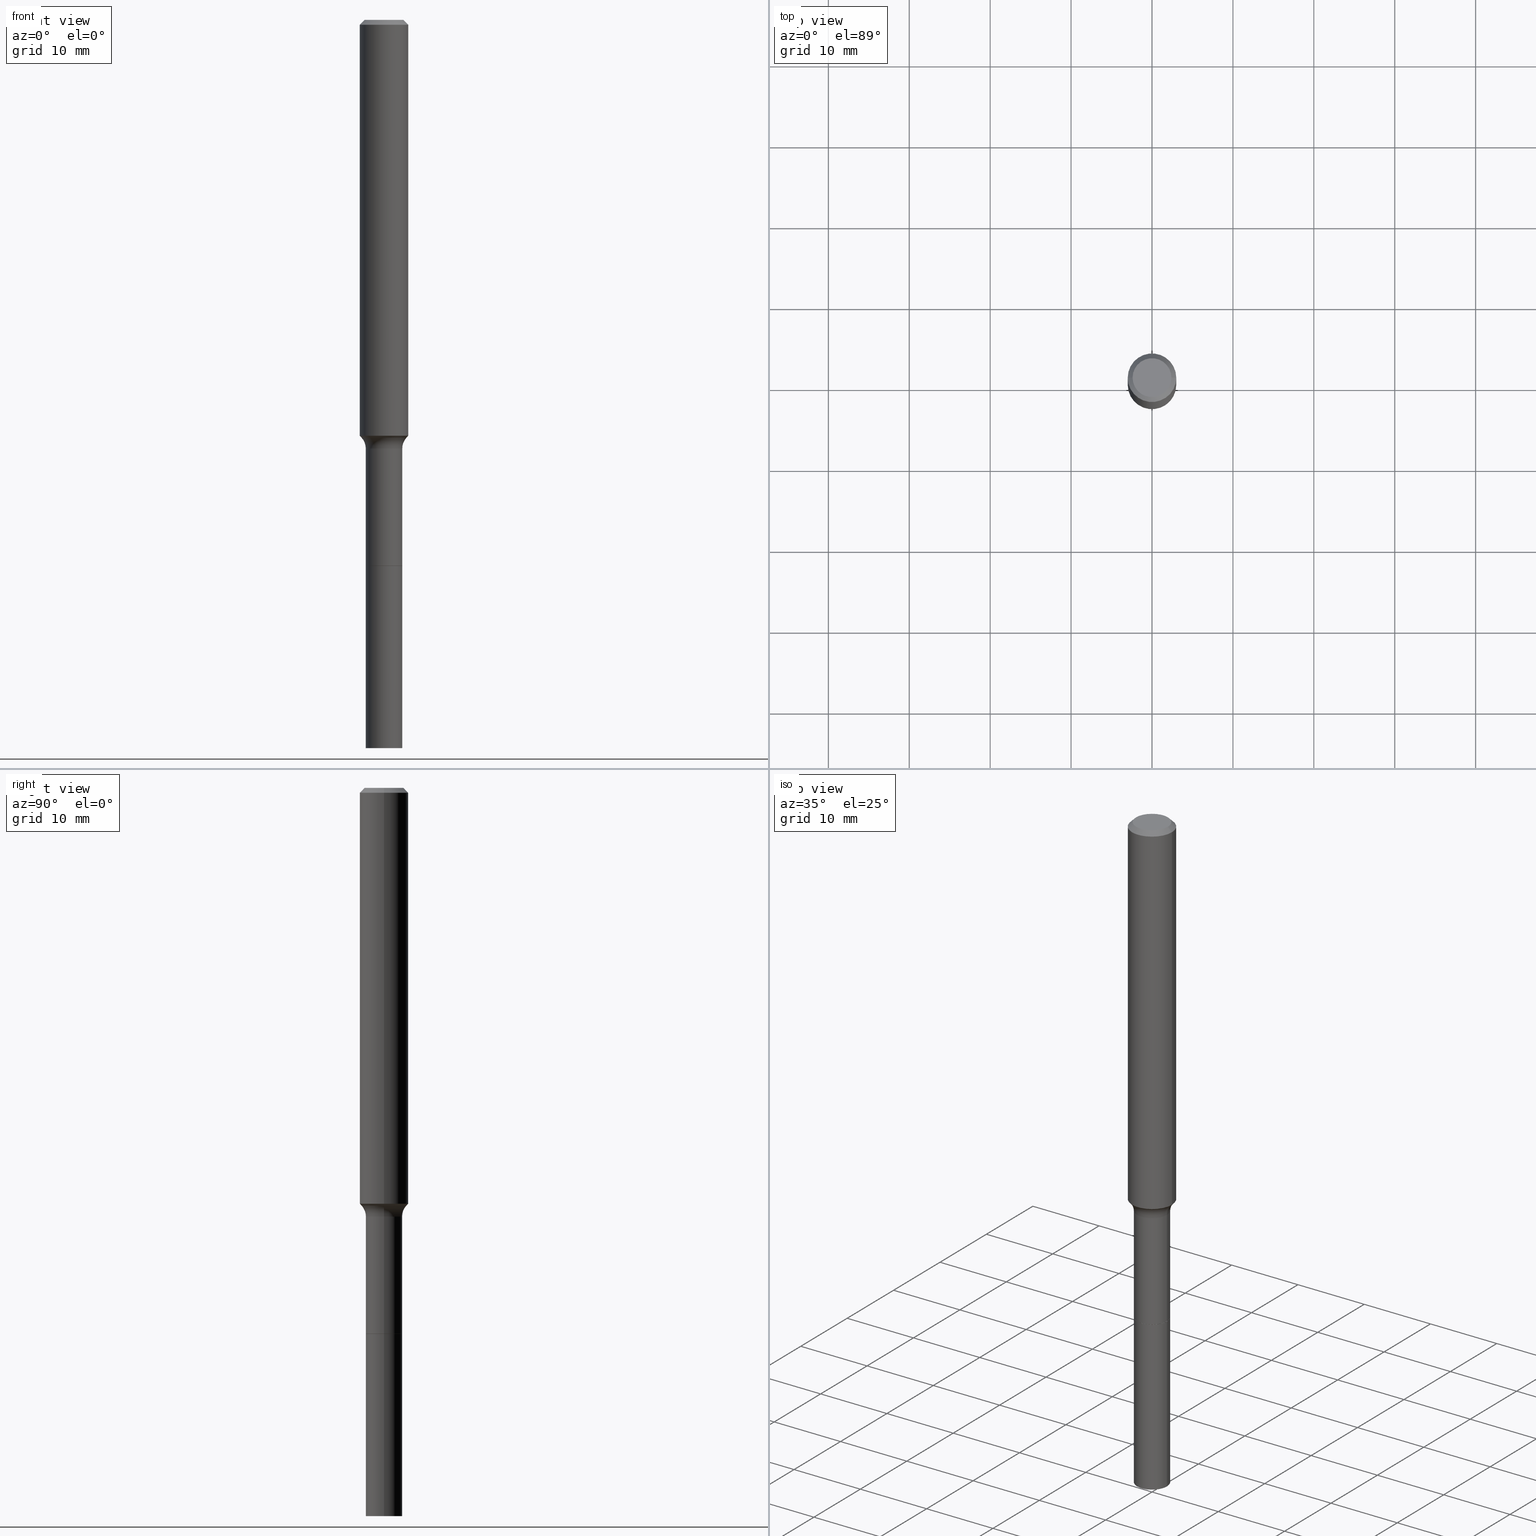
[diagram: canonical four-view strip — front | top / right | iso, engineering-drawing reading convention]
A machine part, canonical four-view strip (front | top / right | iso — engineering-drawing reading convention). The complete STEP part file that produces these views, byte-faithful:
ISO-10303-21;
HEADER;
FILE_DESCRIPTION (( 'STEP AP203' ),
    '1' );
FILE_NAME ('67831.STEP',
    '2025-04-01T15:31:22',
    ( '' ),
    ( '' ),
    'SwSTEP 2.0',
    'SolidWorks 2024',
    '' );
FILE_SCHEMA (( 'CONFIG_CONTROL_DESIGN' ));
ENDSEC;

DATA;
#1 = DIRECTION ( 'NONE',  ( 1.000000000000000000, -6.982962677686273810E-15, 0.000000000000000000 ) ) ;
#2 = EDGE_CURVE ( 'NONE', #162, #242, #122, .T. ) ;
#3 = AXIS2_PLACEMENT_3D ( 'NONE', #294, #255, #452 ) ;
#4 = CARTESIAN_POINT ( 'NONE',  ( 5.101981570344049922E-29, -7.284277517228453725E-15, -2.086299999999999599 ) ) ;
#5 = VERTEX_POINT ( 'NONE', #244 ) ;
#6 = PERSON_AND_ORGANIZATION ( #349, #413 ) ;
#7 = ORIENTED_EDGE ( 'NONE', *, *, #337, .T. ) ;
#8 = CARTESIAN_POINT ( 'NONE',  ( 0.08859999999999999820, -9.896603854950894217E-15, -2.657300000000000217 ) ) ;
#9 = PERSON_AND_ORGANIZATION ( #349, #413 ) ;
#10 = VECTOR ( 'NONE', #180, 39.37007874015748854 ) ;
#11 = LOCAL_TIME ( 11, 31, 22.00000000000000000, #375 ) ;
#12 = DIRECTION ( 'NONE',  ( -2.445468806185136597E-29, 3.491481338843145583E-15, 1.000000000000000000 ) ) ;
#13 = FACE_OUTER_BOUND ( 'NONE', #422, .T. ) ;
#14 = DIRECTION ( 'NONE',  ( 2.445468806185136597E-29, -3.491481338843145583E-15, -1.000000000000000000 ) ) ;
#15 = ADVANCED_FACE ( 'NONE', ( #441 ), #313, .T. ) ;
#16 = CALENDAR_DATE ( 2025, 1, 4 ) ;
#17 = CARTESIAN_POINT ( 'NONE',  ( -0.08859999999999995657, 6.295408638834484561E-16, -4.358176489965844866E-30 ) ) ;
#18 = DIRECTION ( 'NONE',  ( -2.445468806185136597E-29, 3.491481338843145583E-15, 1.000000000000000000 ) ) ;
#19 = ORIENTED_EDGE ( 'NONE', *, *, #333, .F. ) ;
#20 = EDGE_CURVE ( 'NONE', #196, #444, #311, .T. ) ;
#21 = DIRECTION ( 'NONE',  ( 1.000000000000000000, 0.000000000000000000, 0.000000000000000000 ) ) ;
#22 = ORIENTED_EDGE ( 'NONE', *, *, #214, .T. ) ;
#23 = FACE_OUTER_BOUND ( 'NONE', #98, .T. ) ;
#24 = CIRCLE ( 'NONE', #445, 0.08859999999999999820 ) ;
#25 = ORIENTED_EDGE ( 'NONE', *, *, #333, .T. ) ;
#26 = CARTESIAN_POINT ( 'NONE',  ( -0.08860000000000010922, -8.648372497824442414E-15, -2.657300000000000217 ) ) ;
#27 = ORIENTED_EDGE ( 'NONE', *, *, #410, .F. ) ;
#28 = LINE ( 'NONE', #394, #478 ) ;
#29 = ORIENTED_EDGE ( 'NONE', *, *, #231, .T. ) ;
#30 = APPROVAL ( #288, 'UNSPECIFIED' ) ;
#31 =( CONVERSION_BASED_UNIT ( 'INCH', #270 ) LENGTH_UNIT ( ) NAMED_UNIT ( #465 ) );
#32 = ORIENTED_EDGE ( 'NONE', *, *, #261, .T. ) ;
#33 = AXIS2_PLACEMENT_3D ( 'NONE', #81, #442, #198 ) ;
#34 = DESIGN_CONTEXT ( 'detailed design', #71, 'design' ) ;
#35 = ORIENTED_EDGE ( 'NONE', *, *, #470, .T. ) ;
#36 = ADVANCED_FACE ( 'NONE', ( #439 ), #272, .F. ) ;
#37 = FACE_OUTER_BOUND ( 'NONE', #363, .T. ) ;
#38 = CALENDAR_DATE ( 2025, 1, 4 ) ;
#39 = PRODUCT_DEFINITION_SHAPE ( 'NONE', 'NONE',  #103 ) ;
#40 = CARTESIAN_POINT ( 'NONE',  ( 0.000000000000000000, 0.000000000000000000, 0.000000000000000000 ) ) ;
#41 =( LENGTH_UNIT ( ) NAMED_UNIT ( * ) SI_UNIT ( $, .METRE. ) );
#42 = APPROVAL ( #167, 'UNSPECIFIED' ) ;
#43 = ORIENTED_EDGE ( 'NONE', *, *, #108, .T. ) ;
#44 = CONICAL_SURFACE ( 'NONE', #131, 0.08809999999999999776, 0.7853981633972775267 ) ;
#45 = PERSON_AND_ORGANIZATION ( #349, #413 ) ;
#46 = ORIENTED_EDGE ( 'NONE', *, *, #20, .T. ) ;
#47 = EDGE_CURVE ( 'NONE', #153, #367, #329, .T. ) ;
#48 = DIRECTION ( 'NONE',  ( 2.445468806185136597E-29, -3.491481338843145583E-15, -1.000000000000000000 ) ) ;
#49 = DIRECTION ( 'NONE',  ( -2.445468806185136597E-29, 3.491481338843145583E-15, 1.000000000000000000 ) ) ;
#50 = VECTOR ( 'NONE', #175, 39.37007874015748143 ) ;
#51 = UNCERTAINTY_MEASURE_WITH_UNIT (LENGTH_MEASURE( 1.000000000000000082E-05 ), #31, 'distance_accuracy_value', 'NONE');
#52 = CARTESIAN_POINT ( 'NONE',  ( 0.000000000000000000, 0.000000000000000000, 0.000000000000000000 ) ) ;
#53 = CARTESIAN_POINT ( 'NONE',  ( 5.776197320209331911E-31, -8.246878922347565456E-17, -0.02362000000000015823 ) ) ;
#54 = DIRECTION ( 'NONE',  ( -2.445468806185136597E-29, 3.491481338843145583E-15, 1.000000000000000000 ) ) ;
#55 = AXIS2_PLACEMENT_3D ( 'NONE', #405, #203, #118 ) ;
#56 = CIRCLE ( 'NONE', #488, 0.07999999999999993228 ) ;
#57 = ORIENTED_EDGE ( 'NONE', *, *, #187, .T. ) ;
#58 = MANIFOLD_SOLID_BREP ( 'Body-Move/Copy2[2]', #91 ) ;
#59 = ADVANCED_FACE ( 'NONE', ( #37 ), #44, .T. ) ;
#60 = DIRECTION ( 'NONE',  ( -2.445468806185136597E-29, 3.491481338843145583E-15, 1.000000000000000000 ) ) ;
#61 = EDGE_LOOP ( 'NONE', ( #199, #72 ) ) ;
#62 = LINE ( 'NONE', #382, #246 ) ;
#63 = VERTEX_POINT ( 'NONE', #164 ) ;
#64 = CARTESIAN_POINT ( 'NONE',  ( -0.1100917038704664480, -6.311534148919946347E-15, -2.031740131194999854 ) ) ;
#65 = VECTOR ( 'NONE', #115, 39.37007874015748143 ) ;
#66 = ORIENTED_EDGE ( 'NONE', *, *, #443, .F. ) ;
#67 = AXIS2_PLACEMENT_3D ( 'NONE', #165, #323, #161 ) ;
#68 = PERSON_AND_ORGANIZATION ( #349, #413 ) ;
#69 = CARTESIAN_POINT ( 'NONE',  ( 5.101981570344049922E-29, -7.284277517228453725E-15, -2.086299999999999599 ) ) ;
#70 = ORIENTED_EDGE ( 'NONE', *, *, #387, .T. ) ;
#71 = APPLICATION_CONTEXT ( 'configuration controlled 3d designs of mechanical parts and assemblies' ) ;
#72 = ORIENTED_EDGE ( 'NONE', *, *, #387, .F. ) ;
#73 = CARTESIAN_POINT ( 'NONE',  ( -0.08860000000000022025, -1.019509873093195295E-14, -3.543299999999999894 ) ) ;
#74 = ORIENTED_EDGE ( 'NONE', *, *, #178, .T. ) ;
#75 = TOROIDAL_SURFACE ( 'NONE', #477, 0.1685999999999999166, 0.07999999999999991840 ) ;
#76 = ADVANCED_FACE ( 'NONE', ( #479 ), #412, .T. ) ;
#77 = PRODUCT_DEFINITION_FORMATION_WITH_SPECIFIED_SOURCE ( 'ANY', '', #425, .NOT_KNOWN. ) ;
#78 = CARTESIAN_POINT ( 'NONE',  ( 0.08859999999999995657, -6.186904932430029529E-16, 4.320292623355197364E-30 ) ) ;
#79 = DIRECTION ( 'NONE',  ( -1.000000000000000000, 6.982962677686265922E-15, -4.876176775795935793E-29 ) ) ;
#80 = PERSON_AND_ORGANIZATION_ROLE ( 'classification_officer' ) ;
#81 = CARTESIAN_POINT ( 'NONE',  ( 5.101981570344049922E-29, -7.284277517228453725E-15, -2.086299999999999599 ) ) ;
#82 = ORIENTED_EDGE ( 'NONE', *, *, #326, .F. ) ;
#83 = COORDINATED_UNIVERSAL_TIME_OFFSET ( 5, 0, .BEHIND. ) ;
#84 = DIRECTION ( 'NONE',  ( -2.445468806185136877E-29, 3.491481338843145188E-15, 1.000000000000000000 ) ) ;
#85 = EDGE_CURVE ( 'NONE', #460, #458, #309, .T. ) ;
#86 = ORIENTED_EDGE ( 'NONE', *, *, #510, .T. ) ;
#87 = AXIS2_PLACEMENT_3D ( 'NONE', #340, #104, #185 ) ;
#88 = CIRCLE ( 'NONE', #33, 0.08859999999999992881 ) ;
#89 = FACE_OUTER_BOUND ( 'NONE', #357, .T. ) ;
#90 = DIRECTION ( 'NONE',  ( 1.000000000000000000, -6.982962677686260400E-15, 0.000000000000000000 ) ) ;
#91 = CLOSED_SHELL ( 'NONE', ( #241, #135, #127, #293, #222, #140, #193, #248, #76, #207, #151, #36, #487, #59 ) ) ;
#92 = CARTESIAN_POINT ( 'NONE',  ( -0.1181000000000002603, -6.224647477800412378E-15, -2.023152285005076045 ) ) ;
#93 = EDGE_CURVE ( 'NONE', #444, #102, #455, .T. ) ;
#94 = AXIS2_PLACEMENT_3D ( 'NONE', #485, #454, #373 ) ;
#95 = PLANE ( 'NONE',  #486 ) ;
#96 = CARTESIAN_POINT ( 'NONE',  ( 4.968557113111869591E-29, -7.093782753446066454E-15, -2.031740131194999854 ) ) ;
#97 = FACE_OUTER_BOUND ( 'NONE', #390, .T. ) ;
#98 = EDGE_LOOP ( 'NONE', ( #143, #46, #507, #265 ) ) ;
#99 = CYLINDRICAL_SURFACE ( 'NONE', #377, 0.1181000000000001354 ) ;
#100 = AXIS2_PLACEMENT_3D ( 'NONE', #234, #160, #392 ) ;
#101 =( GEOMETRIC_REPRESENTATION_CONTEXT ( 3 ) GLOBAL_UNCERTAINTY_ASSIGNED_CONTEXT ( ( #51 ) ) GLOBAL_UNIT_ASSIGNED_CONTEXT ( ( #31, #353, #158 ) ) REPRESENTATION_CONTEXT ( 'NONE', 'WORKASPACE' ) );
#102 = VERTEX_POINT ( 'NONE', #369 ) ;
#103 = PRODUCT_DEFINITION ( 'UNKNOWN', '', #77, #34 ) ;
#104 = DIRECTION ( 'NONE',  ( -2.445468806185136597E-29, 3.491481338843145583E-15, 1.000000000000000000 ) ) ;
#105 = VERTEX_POINT ( 'NONE', #136 ) ;
#106 = DIRECTION ( 'NONE',  ( 1.000000000000000000, -6.982962677686266711E-15, 4.876176775795936353E-29 ) ) ;
#107 = ORIENTED_EDGE ( 'NONE', *, *, #416, .T. ) ;
#108 = EDGE_CURVE ( 'NONE', #458, #188, #320, .T. ) ;
#109 = CARTESIAN_POINT ( 'NONE',  ( 8.665029620955794069E-29, -1.237136582792291707E-14, -3.543299999999999894 ) ) ;
#110 = CIRCLE ( 'NONE', #335, 0.09447999999999998066 ) ;
#111 = ORIENTED_EDGE ( 'NONE', *, *, #510, .F. ) ;
#112 = CIRCLE ( 'NONE', #277, 0.08859999999999992881 ) ;
#113 = PRODUCT_RELATED_PRODUCT_CATEGORY ( 'detail', '', ( #425 ) ) ;
#114 = CARTESIAN_POINT ( 'NONE',  ( 5.776197320209331911E-31, -8.246878922347565456E-17, -0.02362000000000015823 ) ) ;
#115 = DIRECTION ( 'NONE',  ( -0.7071067811864267805, 7.493145998869918709E-15, 0.7071067811866682540 ) ) ;
#116 = DATE_AND_TIME ( #16, #11 ) ;
#117 = DIRECTION ( 'NONE',  ( -2.445468806185136597E-29, 3.491481338843145583E-15, 1.000000000000000000 ) ) ;
#118 = DIRECTION ( 'NONE',  ( -1.000000000000000000, 6.982962677686265922E-15, -4.876176775795935793E-29 ) ) ;
#119 = EDGE_CURVE ( 'NONE', #511, #63, #110, .T. ) ;
#120 = CARTESIAN_POINT ( 'NONE',  ( -0.08859999999999999820, -7.650681705250012498E-15, -2.656800000000000050 ) ) ;
#121 = ORIENTED_EDGE ( 'NONE', *, *, #174, .F. ) ;
#122 = CIRCLE ( 'NONE', #100, 0.08859999999999999820 ) ;
#123 = CIRCLE ( 'NONE', #496, 0.1181000000000002603 ) ;
#124 = CARTESIAN_POINT ( 'NONE',  ( 8.665029620955794069E-29, -1.237136582792291707E-14, -3.543299999999999894 ) ) ;
#125 = DIRECTION ( 'NONE',  ( -2.445468806185136597E-29, 3.491481338843145583E-15, 1.000000000000000000 ) ) ;
#126 = APPROVAL_DATE_TIME ( #318, #484 ) ;
#127 = ADVANCED_FACE ( 'NONE', ( #491 ), #447, .T. ) ;
#128 = DIRECTION ( 'NONE',  ( -0.7071067811865461294, 2.468850131082242072E-15, -0.7071067811865489050 ) ) ;
#129 = VERTEX_POINT ( 'NONE', #334 ) ;
#130 = CALENDAR_DATE ( 2025, 1, 4 ) ;
#131 = AXIS2_PLACEMENT_3D ( 'NONE', #359, #125, #1 ) ;
#132 = APPROVAL_PERSON_ORGANIZATION ( #157, #484, #480 ) ;
#133 = DIRECTION ( 'NONE',  ( -2.445468806185136597E-29, 3.491481338843145583E-15, 1.000000000000000000 ) ) ;
#134 = DIRECTION ( 'NONE',  ( 1.000000000000000000, -6.982962677686269077E-15, 0.000000000000000000 ) ) ;
#135 = ADVANCED_FACE ( 'NONE', ( #374 ), #435, .T. ) ;
#136 = CARTESIAN_POINT ( 'NONE',  ( -0.08859999999999992881, -7.650681705250012498E-15, -2.086299999999999599 ) ) ;
#137 = CC_DESIGN_DATE_AND_TIME_ASSIGNMENT ( #243, #364, ( #372 ) ) ;
#138 = AXIS2_PLACEMENT_3D ( 'NONE', #432, #194, #79 ) ;
#139 = CARTESIAN_POINT ( 'NONE',  ( 6.498344258675763520E-29, -9.277913361707891265E-15, -2.657300000000000217 ) ) ;
#140 = ADVANCED_FACE ( 'NONE', ( #89 ), #415, .T. ) ;
#141 = FACE_OUTER_BOUND ( 'NONE', #324, .T. ) ;
#142 = DIRECTION ( 'NONE',  ( 1.000000000000000000, -6.982962677686273810E-15, 0.000000000000000000 ) ) ;
#143 = ORIENTED_EDGE ( 'NONE', *, *, #317, .T. ) ;
#144 = VECTOR ( 'NONE', #218, 39.37007874015748854 ) ;
#145 = DIRECTION ( 'NONE',  ( 1.000000000000000000, -6.982962677686269866E-15, 0.000000000000000000 ) ) ;
#146 = AXIS2_PLACEMENT_3D ( 'NONE', #139, #376, #90 ) ;
#147 = LOCAL_TIME ( 11, 31, 22.00000000000000000, #83 ) ;
#148 = ORIENTED_EDGE ( 'NONE', *, *, #2, .T. ) ;
#149 = CARTESIAN_POINT ( 'NONE',  ( 6.498344258675763520E-29, -9.277913361707891265E-15, -2.657300000000000217 ) ) ;
#150 = ORIENTED_EDGE ( 'NONE', *, *, #337, .F. ) ;
#151 = ADVANCED_FACE ( 'NONE', ( #407 ), #200, .T. ) ;
#152 = FACE_OUTER_BOUND ( 'NONE', #509, .T. ) ;
#153 = VERTEX_POINT ( 'NONE', #92 ) ;
#154 = CALENDAR_DATE ( 2025, 1, 4 ) ;
#155 = LINE ( 'NONE', #481, #469 ) ;
#156 = EDGE_LOOP ( 'NONE', ( #150, #166, #86, #230 ) ) ;
#157 = PERSON_AND_ORGANIZATION ( #349, #413 ) ;
#158 =( NAMED_UNIT ( * ) SI_UNIT ( $, .STERADIAN. ) SOLID_ANGLE_UNIT ( ) );
#159 = ADVANCED_FACE ( 'NONE', ( #449 ), #95, .F. ) ;
#160 = DIRECTION ( 'NONE',  ( -2.445468806185136597E-29, 3.491481338843145583E-15, 1.000000000000000000 ) ) ;
#161 = DIRECTION ( 'NONE',  ( 1.000000000000000000, -6.982962677686273810E-15, 0.000000000000000000 ) ) ;
#162 = VERTEX_POINT ( 'NONE', #8 ) ;
#163 = LINE ( 'NONE', #78, #186 ) ;
#164 = CARTESIAN_POINT ( 'NONE',  ( 0.09447999999999998066, -7.704367267948739676E-16, -3.085620075131172158E-17 ) ) ;
#165 = CARTESIAN_POINT ( 'NONE',  ( 6.498344258675763520E-29, -9.277913361707891265E-15, -2.657300000000000217 ) ) ;
#166 = ORIENTED_EDGE ( 'NONE', *, *, #365, .T. ) ;
#167 = APPROVAL_STATUS ( 'not_yet_approved' ) ;
#168 = ADVANCED_FACE ( 'NONE', ( #411 ), #289, .T. ) ;
#169 = APPLICATION_PROTOCOL_DEFINITION ( 'international standard', 'config_control_design', 1994, #71 ) ;
#170 = CARTESIAN_POINT ( 'NONE',  ( 5.776197320209331911E-31, -8.246878922347565456E-17, -0.02362000000000015823 ) ) ;
#171 = LINE ( 'NONE', #212, #50 ) ;
#172 = AXIS2_PLACEMENT_3D ( 'NONE', #52, #12, #250 ) ;
#173 = AXIS2_PLACEMENT_3D ( 'NONE', #40, #360, #21 ) ;
#174 = EDGE_CURVE ( 'NONE', #281, #322, #210, .T. ) ;
#175 = DIRECTION ( 'NONE',  ( -2.445468806185136877E-29, 3.491481338843145188E-15, 1.000000000000000000 ) ) ;
#176 = CYLINDRICAL_SURFACE ( 'NONE', #362, 0.08859999999999995657 ) ;
#177 = CARTESIAN_POINT ( 'NONE',  ( 5.776197320209331911E-31, -8.246878922347565456E-17, -0.02362000000000015823 ) ) ;
#178 = EDGE_CURVE ( 'NONE', #153, #281, #171, .T. ) ;
#179 = DIRECTION ( 'NONE',  ( -2.445468806185136877E-29, 3.491481338843145188E-15, 1.000000000000000000 ) ) ;
#180 = DIRECTION ( 'NONE',  ( 0.6819983600624965892, -2.208861293262456870E-15, 0.7313537016191721252 ) ) ;
#181 = ORIENTED_EDGE ( 'NONE', *, *, #348, .F. ) ;
#182 = DIRECTION ( 'NONE',  ( -2.445468806185136597E-29, 3.491481338843145583E-15, 1.000000000000000000 ) ) ;
#183 = ORIENTED_EDGE ( 'NONE', *, *, #261, .F. ) ;
#184 = AXIS2_PLACEMENT_3D ( 'NONE', #302, #417, #296 ) ;
#185 = DIRECTION ( 'NONE',  ( 1.000000000000000000, -6.982962677686269866E-15, 0.000000000000000000 ) ) ;
#186 = VECTOR ( 'NONE', #238, 39.37007874015748143 ) ;
#187 = EDGE_CURVE ( 'NONE', #63, #511, #225, .T. ) ;
#188 = VERTEX_POINT ( 'NONE', #331 ) ;
#189 = DIRECTION ( 'NONE',  ( 1.000000000000000000, -6.982962677686273810E-15, 0.000000000000000000 ) ) ;
#190 = EDGE_LOOP ( 'NONE', ( #107, #74, #418, #66 ) ) ;
#191 = DIRECTION ( 'NONE',  ( -2.445468806185136597E-29, 3.491481338843145583E-15, 1.000000000000000000 ) ) ;
#192 = ORIENTED_EDGE ( 'NONE', *, *, #20, .F. ) ;
#193 = ADVANCED_FACE ( 'NONE', ( #13 ), #176, .T. ) ;
#194 = DIRECTION ( 'NONE',  ( 2.438088387897960049E-29, -3.491481338843145188E-15, -1.000000000000000000 ) ) ;
#195 = CIRCLE ( 'NONE', #259, 0.08809999999999999776 ) ;
#196 = VERTEX_POINT ( 'NONE', #256 ) ;
#197 = ORIENTED_EDGE ( 'NONE', *, *, #85, .F. ) ;
#198 = DIRECTION ( 'NONE',  ( 1.000000000000000000, -6.982962677686263555E-15, 0.000000000000000000 ) ) ;
#199 = ORIENTED_EDGE ( 'NONE', *, *, #317, .F. ) ;
#200 = CONICAL_SURFACE ( 'NONE', #384, 0.1181000000000000105, 0.7853981633974463916 ) ;
#201 = CALENDAR_DATE ( 2025, 1, 4 ) ;
#202 = VECTOR ( 'NONE', #463, 39.37007874015748143 ) ;
#203 = DIRECTION ( 'NONE',  ( 2.438088387897960049E-29, -3.491481338843145188E-15, -1.000000000000000000 ) ) ;
#204 = SHAPE_DEFINITION_REPRESENTATION ( #39, #408 ) ;
#205 = DIRECTION ( 'NONE',  ( 1.000000000000000000, -6.982962677686267499E-15, 0.000000000000000000 ) ) ;
#206 = PERSON_AND_ORGANIZATION_ROLE ( 'creator' ) ;
#207 = ADVANCED_FACE ( 'NONE', ( #152 ), #99, .T. ) ;
#208 = CARTESIAN_POINT ( 'NONE',  ( 6.497121524272670718E-29, -9.276167621038468972E-15, -2.656800000000000050 ) ) ;
#209 = COORDINATED_UNIVERSAL_TIME_OFFSET ( 5, 0, .BEHIND. ) ;
#210 = CIRCLE ( 'NONE', #258, 0.1181000000000000105 ) ;
#211 = CC_DESIGN_APPROVAL ( #42, ( #372 ) ) ;
#212 = CARTESIAN_POINT ( 'NONE',  ( -0.1181000000000001354, 8.391509709326792818E-16, -5.809262341591050090E-30 ) ) ;
#213 = DIRECTION ( 'NONE',  ( -2.445468806185136597E-29, 3.491481338843145583E-15, 1.000000000000000000 ) ) ;
#214 = EDGE_CURVE ( 'NONE', #5, #102, #264, .T. ) ;
#215 = APPROVAL_ROLE ( '' ) ;
#216 = DIRECTION ( 'NONE',  ( -1.000000000000000000, 6.982962677686267499E-15, 0.000000000000000000 ) ) ;
#217 = CONICAL_SURFACE ( 'NONE', #276, 0.1100917038704664480, 0.7504915783575591970 ) ;
#218 = DIRECTION ( 'NONE',  ( -0.6819983600624965892, 7.399397606724278688E-15, 0.7313537016191721252 ) ) ;
#219 = DIRECTION ( 'NONE',  ( 1.000000000000000000, -6.982962677686266711E-15, 4.876176775795936353E-29 ) ) ;
#220 = ORIENTED_EDGE ( 'NONE', *, *, #410, .T. ) ;
#221 = APPLICATION_CONTEXT ( 'configuration controlled 3d designs of mechanical parts and assemblies' ) ;
#222 = ADVANCED_FACE ( 'NONE', ( #141 ), #235, .F. ) ;
#223 = LINE ( 'NONE', #64, #144 ) ;
#224 = ORIENTED_EDGE ( 'NONE', *, *, #108, .F. ) ;
#225 = CIRCLE ( 'NONE', #286, 0.09447999999999998066 ) ;
#226 = CARTESIAN_POINT ( 'NONE',  ( 0.1181000000000000105, -9.071566814582239172E-16, -0.02362000000000015823 ) ) ;
#227 = ORIENTED_EDGE ( 'NONE', *, *, #348, .T. ) ;
#228 = COORDINATED_UNIVERSAL_TIME_OFFSET ( 5, 0, .BEHIND. ) ;
#229 = DIRECTION ( 'NONE',  ( 1.000000000000000000, -6.982962677686269077E-15, 0.000000000000000000 ) ) ;
#230 = ORIENTED_EDGE ( 'NONE', *, *, #268, .F. ) ;
#231 = EDGE_CURVE ( 'NONE', #458, #367, #466, .T. ) ;
#232 = MANIFOLD_SOLID_BREP ( 'Body-Move/Copy2[1]', #314 ) ;
#233 = CARTESIAN_POINT ( 'NONE',  ( 0.1181000000000002603, -7.888486340967843571E-15, -2.023152285005076045 ) ) ;
#234 = CARTESIAN_POINT ( 'NONE',  ( 6.498344258675763520E-29, -9.277913361707891265E-15, -2.657300000000000217 ) ) ;
#235 = TOROIDAL_SURFACE ( 'NONE', #184, 0.1685999999999999166, 0.07999999999999991840 ) ;
#236 = ORIENTED_EDGE ( 'NONE', *, *, #119, .F. ) ;
#237 = LOCAL_TIME ( 11, 31, 22.00000000000000000, #228 ) ;
#238 = DIRECTION ( 'NONE',  ( -2.445468806185136877E-29, 3.491481338843145188E-15, 1.000000000000000000 ) ) ;
#239 = ORIENTED_EDGE ( 'NONE', *, *, #119, .T. ) ;
#240 = CARTESIAN_POINT ( 'NONE',  ( 6.498344258675763520E-29, -9.277913361707891265E-15, -2.657300000000000217 ) ) ;
#241 = ADVANCED_FACE ( 'NONE', ( #23 ), #266, .T. ) ;
#242 = VERTEX_POINT ( 'NONE', #260 ) ;
#243 = DATE_AND_TIME ( #38, #147 ) ;
#244 = CARTESIAN_POINT ( 'NONE',  ( 0.08809999999999999776, -9.893112373612052788E-15, -2.657300000000000217 ) ) ;
#245 = CIRCLE ( 'NONE', #87, 0.1100917038704664480 ) ;
#246 = VECTOR ( 'NONE', #344, 39.37007874015748143 ) ;
#247 = DIRECTION ( 'NONE',  ( 1.000000000000000000, -6.982962677686267499E-15, 4.875432709231658792E-29 ) ) ;
#248 = ADVANCED_FACE ( 'NONE', ( #421 ), #75, .F. ) ;
#249 = DIRECTION ( 'NONE',  ( 2.438088387897960049E-29, -3.491481338843145188E-15, -1.000000000000000000 ) ) ;
#250 = DIRECTION ( 'NONE',  ( 1.000000000000000000, -6.982962677686266711E-15, 4.876176775795936353E-29 ) ) ;
#251 = CIRCLE ( 'NONE', #370, 0.08860000000000022025 ) ;
#252 = AXIS2_PLACEMENT_3D ( 'NONE', #114, #282, #516 ) ;
#253 = DIRECTION ( 'NONE',  ( 1.000000000000000000, -6.982962677686269866E-15, 0.000000000000000000 ) ) ;
#254 = EDGE_CURVE ( 'NONE', #129, #351, #251, .T. ) ;
#255 = DIRECTION ( 'NONE',  ( -6.982962677686266711E-15, -1.000000000000000000, 3.491481338843145583E-15 ) ) ;
#256 = CARTESIAN_POINT ( 'NONE',  ( -0.08809999999999999776, -8.649275984329132112E-15, -2.657300000000000217 ) ) ;
#257 = ORIENTED_EDGE ( 'NONE', *, *, #174, .T. ) ;
#258 = AXIS2_PLACEMENT_3D ( 'NONE', #170, #327, #205 ) ;
#259 = AXIS2_PLACEMENT_3D ( 'NONE', #149, #262, #189 ) ;
#260 = CARTESIAN_POINT ( 'NONE',  ( -0.08859999999999999820, -1.019509873093195453E-14, -2.657300000000000217 ) ) ;
#261 = EDGE_CURVE ( 'NONE', #460, #153, #223, .T. ) ;
#262 = DIRECTION ( 'NONE',  ( -2.445468806185136597E-29, 3.491481338843145583E-15, 1.000000000000000000 ) ) ;
#263 = ORIENTED_EDGE ( 'NONE', *, *, #178, .F. ) ;
#264 = LINE ( 'NONE', #423, #495 ) ;
#265 = ORIENTED_EDGE ( 'NONE', *, *, #214, .F. ) ;
#266 = CONICAL_SURFACE ( 'NONE', #300, 0.08809999999999999776, 0.7853981633972775267 ) ;
#267 = DIRECTION ( 'NONE',  ( 1.000000000000000000, -6.982962677686267499E-15, 4.883557194083112901E-29 ) ) ;
#268 = EDGE_CURVE ( 'NONE', #242, #162, #503, .T. ) ;
#269 = ORIENTED_EDGE ( 'NONE', *, *, #306, .T. ) ;
#270 = LENGTH_MEASURE_WITH_UNIT ( LENGTH_MEASURE( 0.02539999999999999897 ), #41 );
#271 = CC_DESIGN_PERSON_AND_ORGANIZATION_ASSIGNMENT ( #9, #401, ( #77 ) ) ;
#272 = PLANE ( 'NONE',  #138 ) ;
#273 = CARTESIAN_POINT ( 'NONE',  ( 0.1100917038704664064, -7.862549012696422141E-15, -2.031740131194999854 ) ) ;
#274 = CARTESIAN_POINT ( 'NONE',  ( 4.947555803142094619E-29, -7.063798448733092153E-15, -2.023152285005076045 ) ) ;
#275 = DIRECTION ( 'NONE',  ( -2.445468806185136597E-29, 3.491481338843145583E-15, 1.000000000000000000 ) ) ;
#276 = AXIS2_PLACEMENT_3D ( 'NONE', #379, #18, #145 ) ;
#277 = AXIS2_PLACEMENT_3D ( 'NONE', #4, #275, #310 ) ;
#278 = ORIENTED_EDGE ( 'NONE', *, *, #502, .F. ) ;
#279 = EDGE_CURVE ( 'NONE', #458, #460, #245, .T. ) ;
#280 = CARTESIAN_POINT ( 'NONE',  ( 4.947555803142094619E-29, -7.063798448733092153E-15, -2.023152285005076045 ) ) ;
#281 = VERTEX_POINT ( 'NONE', #508 ) ;
#282 = DIRECTION ( 'NONE',  ( -2.445468806185136597E-29, 3.491481338843145583E-15, 1.000000000000000000 ) ) ;
#283 = ORIENTED_EDGE ( 'NONE', *, *, #268, .T. ) ;
#284 = DATE_AND_TIME ( #130, #438 ) ;
#285 = CARTESIAN_POINT ( 'NONE',  ( 7.545787641473140628E-46, -1.077338491108201769E-31, -3.085620075131671975E-17 ) ) ;
#286 = AXIS2_PLACEMENT_3D ( 'NONE', #290, #133, #409 ) ;
#287 = APPROVAL_PERSON_ORGANIZATION ( #368, #30, #215 ) ;
#288 = APPROVAL_STATUS ( 'not_yet_approved' ) ;
#289 = CYLINDRICAL_SURFACE ( 'NONE', #146, 0.08860000000000010922 ) ;
#290 = CARTESIAN_POINT ( 'NONE',  ( 7.545787641473140628E-46, -1.077338491108201769E-31, -3.085620075131671975E-17 ) ) ;
#291 = DIRECTION ( 'NONE',  ( -1.000000000000000000, 6.982962677686267499E-15, 0.000000000000000000 ) ) ;
#292 = LOCAL_TIME ( 11, 31, 22.00000000000000000, #209 ) ;
#293 = ADVANCED_FACE ( 'NONE', ( #97 ), #217, .T. ) ;
#294 = CARTESIAN_POINT ( 'NONE',  ( 0.1685999999999999166, -8.461605024686358331E-15, -2.086299999999999599 ) ) ;
#295 = CC_DESIGN_PERSON_AND_ORGANIZATION_ASSIGNMENT ( #448, #206, ( #77 ) ) ;
#296 = DIRECTION ( 'NONE',  ( 1.000000000000000000, -6.982962677686267499E-15, 4.883557194083112901E-29 ) ) ;
#297 = CARTESIAN_POINT ( 'NONE',  ( 6.497121524272670718E-29, -9.276167621038468972E-15, -2.656800000000000050 ) ) ;
#298 = CC_DESIGN_PERSON_AND_ORGANIZATION_ASSIGNMENT ( #45, #366, ( #425 ) ) ;
#299 = EDGE_LOOP ( 'NONE', ( #181, #308, #43, #220 ) ) ;
#300 = AXIS2_PLACEMENT_3D ( 'NONE', #307, #346, #427 ) ;
#301 = CIRCLE ( 'NONE', #252, 0.1181000000000000105 ) ;
#302 = CARTESIAN_POINT ( 'NONE',  ( 5.101981570344049922E-29, -7.284277517228453725E-15, -2.086299999999999599 ) ) ;
#303 = EDGE_LOOP ( 'NONE', ( #305, #7, #339, #111 ) ) ;
#304 = LINE ( 'NONE', #17, #202 ) ;
#305 = ORIENTED_EDGE ( 'NONE', *, *, #254, .T. ) ;
#306 = EDGE_CURVE ( 'NONE', #102, #444, #24, .T. ) ;
#307 = CARTESIAN_POINT ( 'NONE',  ( 6.498344258675763520E-29, -9.277913361707891265E-15, -2.657300000000000217 ) ) ;
#308 = ORIENTED_EDGE ( 'NONE', *, *, #279, .F. ) ;
#309 = CIRCLE ( 'NONE', #342, 0.1100917038704664480 ) ;
#310 = DIRECTION ( 'NONE',  ( 1.000000000000000000, -6.982962677686263555E-15, 0.000000000000000000 ) ) ;
#311 = LINE ( 'NONE', #471, #65 ) ;
#312 = CARTESIAN_POINT ( 'NONE',  ( 6.498344258675763520E-29, -9.277913361707891265E-15, -2.657300000000000217 ) ) ;
#313 = PLANE ( 'NONE',  #55 ) ;
#314 = CLOSED_SHELL ( 'NONE', ( #168, #15, #426, #159 ) ) ;
#315 = DIRECTION ( 'NONE',  ( 1.000000000000000000, -6.982962677686265133E-15, 0.000000000000000000 ) ) ;
#316 = ORIENTED_EDGE ( 'NONE', *, *, #326, .T. ) ;
#317 = EDGE_CURVE ( 'NONE', #5, #196, #195, .T. ) ;
#318 = DATE_AND_TIME ( #201, #292 ) ;
#319 = DIRECTION ( 'NONE',  ( -1.000000000000000000, 7.105427357601005014E-15, 0.000000000000000000 ) ) ;
#320 = CIRCLE ( 'NONE', #3, 0.07999999999999993228 ) ;
#321 = APPROVAL_PERSON_ORGANIZATION ( #6, #42, #325 ) ;
#322 = VERTEX_POINT ( 'NONE', #226 ) ;
#323 = DIRECTION ( 'NONE',  ( -2.445468806185136597E-29, 3.491481338843145583E-15, 1.000000000000000000 ) ) ;
#324 = EDGE_LOOP ( 'NONE', ( #197, #227, #388, #224 ) ) ;
#325 = APPROVAL_ROLE ( '' ) ;
#326 = EDGE_CURVE ( 'NONE', #63, #322, #62, .T. ) ;
#327 = DIRECTION ( 'NONE',  ( -2.445468806185136597E-29, 3.491481338843145583E-15, 1.000000000000000000 ) ) ;
#328 = DIRECTION ( 'NONE',  ( 1.000000000000000000, -6.982962677686269866E-15, 0.000000000000000000 ) ) ;
#329 = CIRCLE ( 'NONE', #371, 0.1181000000000002603 ) ;
#330 = AXIS2_PLACEMENT_3D ( 'NONE', #312, #389, #472 ) ;
#331 = CARTESIAN_POINT ( 'NONE',  ( 0.08859999999999992881, -7.902968010471456678E-15, -2.086299999999999599 ) ) ;
#332 = CARTESIAN_POINT ( 'NONE',  ( 0.000000000000000000, 0.000000000000000000, 0.000000000000000000 ) ) ;
#333 = EDGE_CURVE ( 'NONE', #444, #105, #304, .T. ) ;
#334 = CARTESIAN_POINT ( 'NONE',  ( 0.08860000000000022025, -1.299005632116592160E-14, -3.543299999999999894 ) ) ;
#335 = AXIS2_PLACEMENT_3D ( 'NONE', #285, #213, #247 ) ;
#336 = CARTESIAN_POINT ( 'NONE',  ( -0.1685999999999999166, -6.086302464736925799E-15, -2.086299999999999599 ) ) ;
#337 = EDGE_CURVE ( 'NONE', #351, #242, #386, .T. ) ;
#338 = CARTESIAN_POINT ( 'NONE',  ( 0.000000000000000000, 0.000000000000000000, 0.000000000000000000 ) ) ;
#339 = ORIENTED_EDGE ( 'NONE', *, *, #2, .F. ) ;
#340 = CARTESIAN_POINT ( 'NONE',  ( 4.968557113111869591E-29, -7.093782753446066454E-15, -2.031740131194999854 ) ) ;
#341 = ORIENTED_EDGE ( 'NONE', *, *, #187, .F. ) ;
#342 = AXIS2_PLACEMENT_3D ( 'NONE', #493, #456, #253 ) ;
#343 = VECTOR ( 'NONE', #179, 39.37007874015748143 ) ;
#344 = DIRECTION ( 'NONE',  ( 0.7071067811865461294, -7.319954787623251312E-15, -0.7071067811865489050 ) ) ;
#345 = ORIENTED_EDGE ( 'NONE', *, *, #254, .F. ) ;
#346 = DIRECTION ( 'NONE',  ( -2.445468806185136597E-29, 3.491481338843145583E-15, 1.000000000000000000 ) ) ;
#347 = ORIENTED_EDGE ( 'NONE', *, *, #47, .F. ) ;
#348 = EDGE_CURVE ( 'NONE', #460, #105, #56, .T. ) ;
#349 = PERSON ( 'UNSPECIFIED', 'UNSPECIFIED', 'UNSPECIFIED', ('UNSPECIFIED'), ('UNSPECIFIED'), ('UNSPECIFIED') ) ;
#350 = CARTESIAN_POINT ( 'NONE',  ( -0.09447999999999998066, 7.009847083995354710E-16, -3.085620075132147757E-17 ) ) ;
#351 = VERTEX_POINT ( 'NONE', #73 ) ;
#352 = DATE_AND_TIME ( #154, #237 ) ;
#353 =( NAMED_UNIT ( * ) PLANE_ANGLE_UNIT ( ) SI_UNIT ( $, .RADIAN. ) );
#354 = AXIS2_PLACEMENT_3D ( 'NONE', #124, #358, #431 ) ;
#355 = ORIENTED_EDGE ( 'NONE', *, *, #502, .T. ) ;
#356 = CYLINDRICAL_SURFACE ( 'NONE', #446, 0.08860000000000010922 ) ;
#357 = EDGE_LOOP ( 'NONE', ( #269, #25, #27, #278 ) ) ;
#358 = DIRECTION ( 'NONE',  ( -2.445468806185136597E-29, 3.491481338843145583E-15, 1.000000000000000000 ) ) ;
#359 = CARTESIAN_POINT ( 'NONE',  ( 6.498344258675763520E-29, -9.277913361707891265E-15, -2.657300000000000217 ) ) ;
#360 = DIRECTION ( 'NONE',  ( 0.000000000000000000, 0.000000000000000000, 1.000000000000000000 ) ) ;
#361 = PLANE ( 'NONE',  #330 ) ;
#362 = AXIS2_PLACEMENT_3D ( 'NONE', #332, #60, #106 ) ;
#363 = EDGE_LOOP ( 'NONE', ( #192, #70, #22, #500 ) ) ;
#364 = DATE_TIME_ROLE ( 'classification_date' ) ;
#365 = EDGE_CURVE ( 'NONE', #351, #129, #420, .T. ) ;
#366 = PERSON_AND_ORGANIZATION_ROLE ( 'design_owner' ) ;
#367 = VERTEX_POINT ( 'NONE', #233 ) ;
#368 = PERSON_AND_ORGANIZATION ( #349, #413 ) ;
#369 = CARTESIAN_POINT ( 'NONE',  ( 0.08859999999999999820, -9.894858114281471925E-15, -2.656800000000000050 ) ) ;
#370 = AXIS2_PLACEMENT_3D ( 'NONE', #109, #182, #142 ) ;
#371 = AXIS2_PLACEMENT_3D ( 'NONE', #274, #434, #396 ) ;
#372 = SECURITY_CLASSIFICATION ( '', '', #490 ) ;
#373 = DIRECTION ( 'NONE',  ( 1.000000000000000000, -6.982962677686266711E-15, 4.876176775795936353E-29 ) ) ;
#374 = FACE_OUTER_BOUND ( 'NONE', #476, .T. ) ;
#375 = COORDINATED_UNIVERSAL_TIME_OFFSET ( 5, 0, .BEHIND. ) ;
#376 = DIRECTION ( 'NONE',  ( -2.445468806185136597E-29, 3.491481338843145583E-15, 1.000000000000000000 ) ) ;
#377 = AXIS2_PLACEMENT_3D ( 'NONE', #338, #429, #219 ) ;
#378 = EDGE_CURVE ( 'NONE', #105, #188, #112, .T. ) ;
#379 = CARTESIAN_POINT ( 'NONE',  ( 4.968557113111869591E-29, -7.093782753446066454E-15, -2.031740131194999854 ) ) ;
#380 = EDGE_LOOP ( 'NONE', ( #183, #515, #29, #347 ) ) ;
#381 = EDGE_LOOP ( 'NONE', ( #82, #236, #400, #257 ) ) ;
#382 = CARTESIAN_POINT ( 'NONE',  ( 0.1181000000000000105, -8.926936027602935883E-16, -0.02362000000000015823 ) ) ;
#383 = ORIENTED_EDGE ( 'NONE', *, *, #93, .T. ) ;
#384 = AXIS2_PLACEMENT_3D ( 'NONE', #53, #48, #216 ) ;
#385 = CIRCLE ( 'NONE', #67, 0.08809999999999999776 ) ;
#386 = LINE ( 'NONE', #26, #343 ) ;
#387 = EDGE_CURVE ( 'NONE', #196, #5, #385, .T. ) ;
#388 = ORIENTED_EDGE ( 'NONE', *, *, #378, .T. ) ;
#389 = DIRECTION ( 'NONE',  ( -2.438088387897960049E-29, 3.491481338843145188E-15, 1.000000000000000000 ) ) ;
#390 = EDGE_LOOP ( 'NONE', ( #467, #32, #403, #517 ) ) ;
#391 = FACE_OUTER_BOUND ( 'NONE', #156, .T. ) ;
#392 = DIRECTION ( 'NONE',  ( 1.000000000000000000, -6.982962677686269077E-15, 0.000000000000000000 ) ) ;
#393 = AXIS2_PLACEMENT_3D ( 'NONE', #208, #414, #134 ) ;
#394 = CARTESIAN_POINT ( 'NONE',  ( 0.08860000000000010922, -9.896603854950894217E-15, -2.657300000000000217 ) ) ;
#395 = VECTOR ( 'NONE', #84, 39.37007874015748143 ) ;
#396 = DIRECTION ( 'NONE',  ( 1.000000000000000000, -6.982962677686265133E-15, 0.000000000000000000 ) ) ;
#397 = PERSON_AND_ORGANIZATION_ROLE ( 'creator' ) ;
#398 = CC_DESIGN_DATE_AND_TIME_ASSIGNMENT ( #352, #512, ( #103 ) ) ;
#399 = DIRECTION ( 'NONE',  ( -2.445468806185136877E-29, 3.491481338843145188E-15, 1.000000000000000000 ) ) ;
#400 = ORIENTED_EDGE ( 'NONE', *, *, #451, .T. ) ;
#401 = PERSON_AND_ORGANIZATION_ROLE ( 'design_supplier' ) ;
#402 = FACE_OUTER_BOUND ( 'NONE', #61, .T. ) ;
#403 = ORIENTED_EDGE ( 'NONE', *, *, #416, .F. ) ;
#404 = MECHANICAL_CONTEXT ( 'NONE', #221, 'mechanical' ) ;
#405 = CARTESIAN_POINT ( 'NONE',  ( 8.665029620955794069E-29, -1.237136582792291707E-14, -3.543299999999999894 ) ) ;
#406 = APPROVAL_DATE_TIME ( #284, #42 ) ;
#407 = FACE_OUTER_BOUND ( 'NONE', #381, .T. ) ;
#408 = ADVANCED_BREP_SHAPE_REPRESENTATION ( '67831', ( #232, #58, #173 ), #101 ) ;
#409 = DIRECTION ( 'NONE',  ( 1.000000000000000000, -6.982962677686267499E-15, 4.875432709231658792E-29 ) ) ;
#410 = EDGE_CURVE ( 'NONE', #188, #105, #88, .T. ) ;
#411 = FACE_OUTER_BOUND ( 'NONE', #303, .T. ) ;
#412 = CONICAL_SURFACE ( 'NONE', #513, 0.1100917038704664480, 0.7504915783575591970 ) ;
#413 = ORGANIZATION ( 'UNSPECIFIED', 'UNSPECIFIED', '' ) ;
#414 = DIRECTION ( 'NONE',  ( -2.445468806185136597E-29, 3.491481338843145583E-15, 1.000000000000000000 ) ) ;
#415 = CYLINDRICAL_SURFACE ( 'NONE', #94, 0.08859999999999995657 ) ;
#416 = EDGE_CURVE ( 'NONE', #367, #153, #123, .T. ) ;
#417 = DIRECTION ( 'NONE',  ( -2.445468806185136597E-29, 3.491481338843145583E-15, 1.000000000000000000 ) ) ;
#418 = ORIENTED_EDGE ( 'NONE', *, *, #470, .F. ) ;
#419 = AXIS2_PLACEMENT_3D ( 'NONE', #177, #14, #291 ) ;
#420 = CIRCLE ( 'NONE', #354, 0.08860000000000022025 ) ;
#421 = FACE_OUTER_BOUND ( 'NONE', #299, .T. ) ;
#422 = EDGE_LOOP ( 'NONE', ( #19, #383, #355, #430 ) ) ;
#423 = CARTESIAN_POINT ( 'NONE',  ( 0.08809999999999999776, -9.893112373612052788E-15, -2.657300000000000217 ) ) ;
#424 = ORIENTED_EDGE ( 'NONE', *, *, #365, .F. ) ;
#425 = PRODUCT ( '67831', '67831', '', ( #404 ) ) ;
#426 = ADVANCED_FACE ( 'NONE', ( #391 ), #356, .T. ) ;
#427 = DIRECTION ( 'NONE',  ( 1.000000000000000000, -6.982962677686273810E-15, 0.000000000000000000 ) ) ;
#428 = EDGE_LOOP ( 'NONE', ( #345, #424 ) ) ;
#429 = DIRECTION ( 'NONE',  ( -2.445468806185136597E-29, 3.491481338843145583E-15, 1.000000000000000000 ) ) ;
#430 = ORIENTED_EDGE ( 'NONE', *, *, #378, .F. ) ;
#431 = DIRECTION ( 'NONE',  ( 1.000000000000000000, -6.982962677686273810E-15, 0.000000000000000000 ) ) ;
#432 = CARTESIAN_POINT ( 'NONE',  ( 3.772893820736570314E-46, -5.386692455541008845E-32, -1.542810037565835988E-17 ) ) ;
#433 = APPROVAL_STATUS ( 'not_yet_approved' ) ;
#434 = DIRECTION ( 'NONE',  ( -2.445468806185136597E-29, 3.491481338843145583E-15, 1.000000000000000000 ) ) ;
#435 = CONICAL_SURFACE ( 'NONE', #419, 0.1181000000000000105, 0.7853981633974463916 ) ;
#436 = CC_DESIGN_SECURITY_CLASSIFICATION ( #372, ( #77 ) ) ;
#437 = LINE ( 'NONE', #440, #395 ) ;
#438 = LOCAL_TIME ( 11, 31, 22.00000000000000000, #483 ) ;
#439 = FACE_OUTER_BOUND ( 'NONE', #482, .T. ) ;
#440 = CARTESIAN_POINT ( 'NONE',  ( 0.1181000000000001354, -8.246878922347490515E-16, 5.758764772215007447E-30 ) ) ;
#441 = FACE_OUTER_BOUND ( 'NONE', #428, .T. ) ;
#442 = DIRECTION ( 'NONE',  ( -2.445468806185136597E-29, 3.491481338843145583E-15, 1.000000000000000000 ) ) ;
#443 = EDGE_CURVE ( 'NONE', #367, #322, #437, .T. ) ;
#444 = VERTEX_POINT ( 'NONE', #120 ) ;
#445 = AXIS2_PLACEMENT_3D ( 'NONE', #297, #461, #229 ) ;
#446 = AXIS2_PLACEMENT_3D ( 'NONE', #240, #191, #475 ) ;
#447 = CYLINDRICAL_SURFACE ( 'NONE', #172, 0.1181000000000001354 ) ;
#448 = PERSON_AND_ORGANIZATION ( #349, #413 ) ;
#449 = FACE_OUTER_BOUND ( 'NONE', #504, .T. ) ;
#450 = PERSON_AND_ORGANIZATION ( #349, #413 ) ;
#451 = EDGE_CURVE ( 'NONE', #511, #281, #155, .T. ) ;
#452 = DIRECTION ( 'NONE',  ( 1.000000000000000000, -6.982962677686265133E-15, 0.000000000000000000 ) ) ;
#453 = APPLICATION_PROTOCOL_DEFINITION ( 'international standard', 'config_control_design', 1994, #221 ) ;
#454 = DIRECTION ( 'NONE',  ( -2.445468806185136597E-29, 3.491481338843145583E-15, 1.000000000000000000 ) ) ;
#455 = CIRCLE ( 'NONE', #393, 0.08859999999999999820 ) ;
#456 = DIRECTION ( 'NONE',  ( -2.445468806185136597E-29, 3.491481338843145583E-15, 1.000000000000000000 ) ) ;
#457 = CARTESIAN_POINT ( 'NONE',  ( 6.498344258675763520E-29, -9.277913361707891265E-15, -2.657300000000000217 ) ) ;
#458 = VERTEX_POINT ( 'NONE', #273 ) ;
#459 = CARTESIAN_POINT ( 'NONE',  ( 0.1100917038704664480, -7.862549012696423718E-15, -2.031740131194999854 ) ) ;
#460 = VERTEX_POINT ( 'NONE', #518 ) ;
#461 = DIRECTION ( 'NONE',  ( -2.445468806185136597E-29, 3.491481338843145583E-15, 1.000000000000000000 ) ) ;
#462 = ORIENTED_EDGE ( 'NONE', *, *, #443, .T. ) ;
#463 = DIRECTION ( 'NONE',  ( -2.445468806185136877E-29, 3.491481338843145188E-15, 1.000000000000000000 ) ) ;
#464 = ORIENTED_EDGE ( 'NONE', *, *, #47, .T. ) ;
#465 = DIMENSIONAL_EXPONENTS ( 1.000000000000000000, 0.000000000000000000, 0.000000000000000000, 0.000000000000000000, 0.000000000000000000, 0.000000000000000000, 0.000000000000000000 ) ;
#466 = LINE ( 'NONE', #459, #10 ) ;
#467 = ORIENTED_EDGE ( 'NONE', *, *, #279, .T. ) ;
#468 = AXIS2_PLACEMENT_3D ( 'NONE', #457, #501, #506 ) ;
#469 = VECTOR ( 'NONE', #128, 39.37007874015748143 ) ;
#470 = EDGE_CURVE ( 'NONE', #322, #281, #301, .T. ) ;
#471 = CARTESIAN_POINT ( 'NONE',  ( -0.08809999999999999776, -8.651925211503244101E-15, -2.657300000000000217 ) ) ;
#472 = DIRECTION ( 'NONE',  ( 1.000000000000000000, -6.982962677686265922E-15, 4.876176775795935793E-29 ) ) ;
#473 = ORIENTED_EDGE ( 'NONE', *, *, #451, .F. ) ;
#474 = APPROVAL_DATE_TIME ( #116, #30 ) ;
#475 = DIRECTION ( 'NONE',  ( 1.000000000000000000, -6.982962677686260400E-15, 0.000000000000000000 ) ) ;
#476 = EDGE_LOOP ( 'NONE', ( #341, #316, #35, #473 ) ) ;
#477 = AXIS2_PLACEMENT_3D ( 'NONE', #69, #54, #267 ) ;
#478 = VECTOR ( 'NONE', #399, 39.37007874015748143 ) ;
#479 = FACE_OUTER_BOUND ( 'NONE', #380, .T. ) ;
#480 = APPROVAL_ROLE ( '' ) ;
#481 = CARTESIAN_POINT ( 'NONE',  ( -0.1181000000000000105, 7.422191030112725094E-16, -0.02362000000000015823 ) ) ;
#482 = EDGE_LOOP ( 'NONE', ( #239, #57 ) ) ;
#483 = COORDINATED_UNIVERSAL_TIME_OFFSET ( 5, 0, .BEHIND. ) ;
#484 = APPROVAL ( #433, 'UNSPECIFIED' ) ;
#485 = CARTESIAN_POINT ( 'NONE',  ( 0.000000000000000000, 0.000000000000000000, 0.000000000000000000 ) ) ;
#486 = AXIS2_PLACEMENT_3D ( 'NONE', #494, #249, #489 ) ;
#487 = ADVANCED_FACE ( 'NONE', ( #402 ), #361, .F. ) ;
#488 = AXIS2_PLACEMENT_3D ( 'NONE', #336, #498, #319 ) ;
#489 = DIRECTION ( 'NONE',  ( -1.000000000000000000, 6.982962677686265922E-15, -4.876176775795935793E-29 ) ) ;
#490 = SECURITY_CLASSIFICATION_LEVEL ( 'unclassified' ) ;
#491 = FACE_OUTER_BOUND ( 'NONE', #190, .T. ) ;
#492 = CC_DESIGN_PERSON_AND_ORGANIZATION_ASSIGNMENT ( #68, #397, ( #103 ) ) ;
#493 = CARTESIAN_POINT ( 'NONE',  ( 4.968557113111869591E-29, -7.093782753446066454E-15, -2.031740131194999854 ) ) ;
#494 = CARTESIAN_POINT ( 'NONE',  ( 6.498344258675763520E-29, -9.277913361707891265E-15, -2.657300000000000217 ) ) ;
#495 = VECTOR ( 'NONE', #499, 39.37007874015748143 ) ;
#496 = AXIS2_PLACEMENT_3D ( 'NONE', #280, #117, #315 ) ;
#497 = CC_DESIGN_PERSON_AND_ORGANIZATION_ASSIGNMENT ( #450, #80, ( #372 ) ) ;
#498 = DIRECTION ( 'NONE',  ( 7.105427357601001859E-15, 1.000000000000000000, -3.491481338843145583E-15 ) ) ;
#499 = DIRECTION ( 'NONE',  ( 0.7071067811864267805, -2.468850131080992517E-15, 0.7071067811866682540 ) ) ;
#500 = ORIENTED_EDGE ( 'NONE', *, *, #93, .F. ) ;
#501 = DIRECTION ( 'NONE',  ( -2.445468806185136597E-29, 3.491481338843145583E-15, 1.000000000000000000 ) ) ;
#502 = EDGE_CURVE ( 'NONE', #102, #188, #163, .T. ) ;
#503 = CIRCLE ( 'NONE', #468, 0.08859999999999999820 ) ;
#504 = EDGE_LOOP ( 'NONE', ( #148, #283 ) ) ;
#505 = CC_DESIGN_APPROVAL ( #484, ( #77 ) ) ;
#506 = DIRECTION ( 'NONE',  ( 1.000000000000000000, -6.982962677686269077E-15, 0.000000000000000000 ) ) ;
#507 = ORIENTED_EDGE ( 'NONE', *, *, #306, .F. ) ;
#508 = CARTESIAN_POINT ( 'NONE',  ( -0.1181000000000000105, -2.733982648045603636E-15, -0.02362000000000015823 ) ) ;
#509 = EDGE_LOOP ( 'NONE', ( #263, #464, #462, #121 ) ) ;
#510 = EDGE_CURVE ( 'NONE', #129, #162, #28, .T. ) ;
#511 = VERTEX_POINT ( 'NONE', #350 ) ;
#512 = DATE_TIME_ROLE ( 'creation_date' ) ;
#513 = AXIS2_PLACEMENT_3D ( 'NONE', #96, #49, #328 ) ;
#514 = CC_DESIGN_APPROVAL ( #30, ( #103 ) ) ;
#515 = ORIENTED_EDGE ( 'NONE', *, *, #85, .T. ) ;
#516 = DIRECTION ( 'NONE',  ( 1.000000000000000000, -6.982962677686267499E-15, 0.000000000000000000 ) ) ;
#517 = ORIENTED_EDGE ( 'NONE', *, *, #231, .F. ) ;
#518 = CARTESIAN_POINT ( 'NONE',  ( -0.1100917038704664064, -6.311534148919946347E-15, -2.031740131194999854 ) ) ;
ENDSEC;
END-ISO-10303-21;
